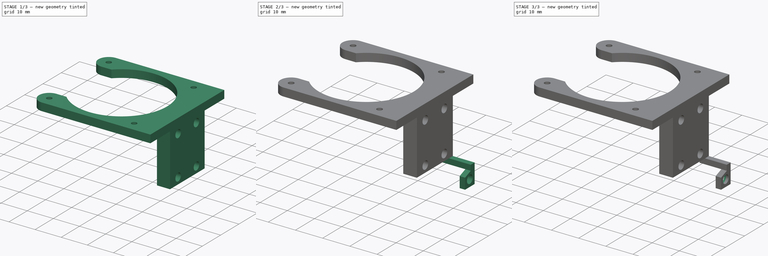
[diagram: build sequence overview — one tinted view per stage of 3, left to right]
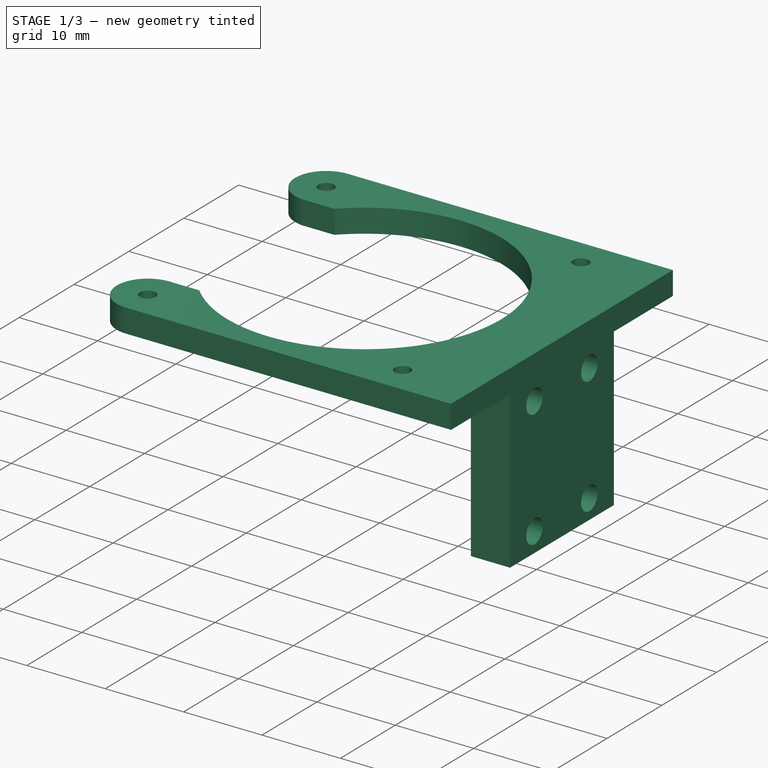
[diagram: stage 1 of 3 — iso view after this stage's code; geometry added in this stage tinted green]
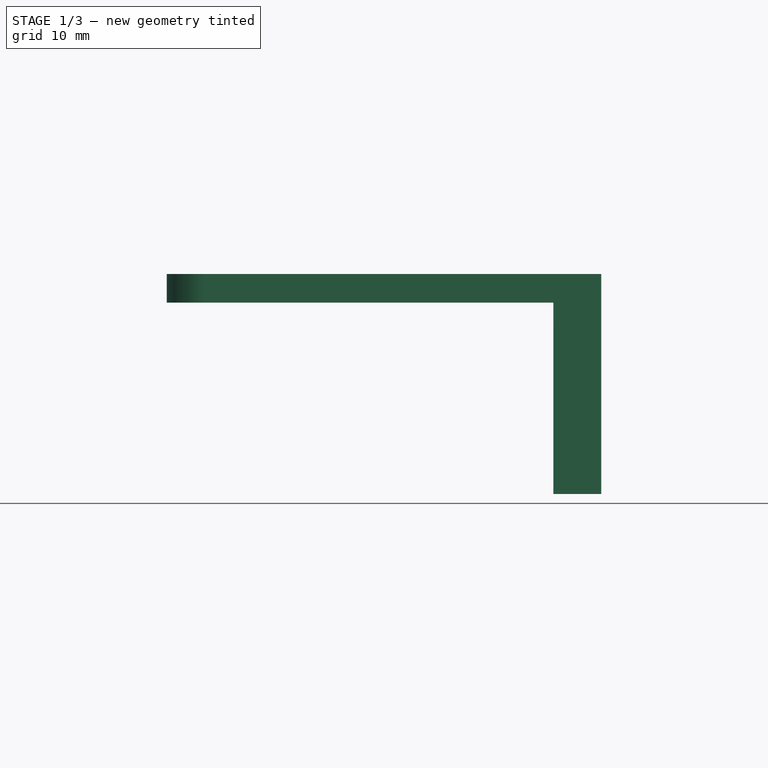
[diagram: stage 1 of 3 — front view after this stage's code; geometry added in this stage tinted green]
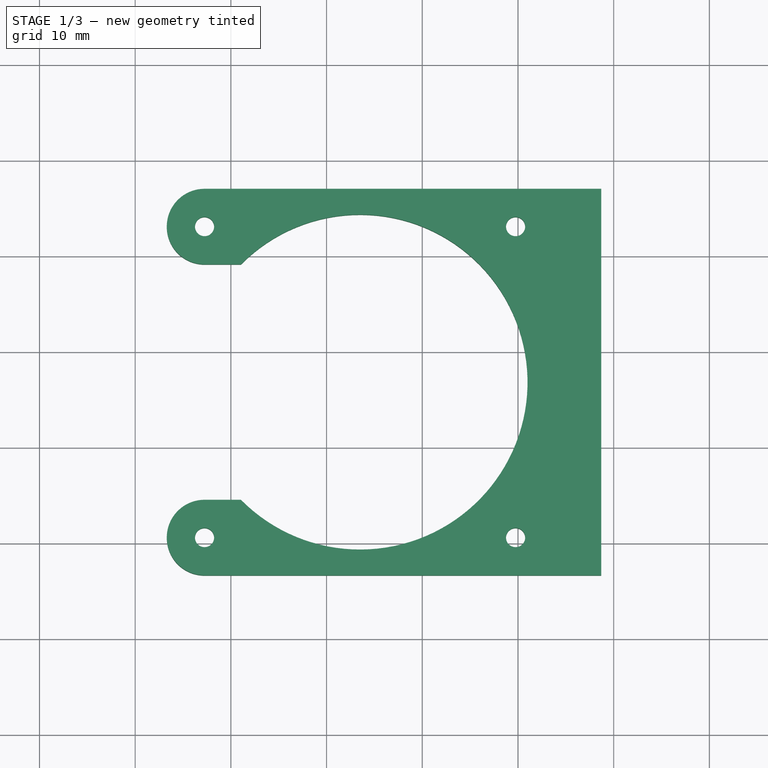
[diagram: stage 1 of 3 — top view after this stage's code; geometry added in this stage tinted green]
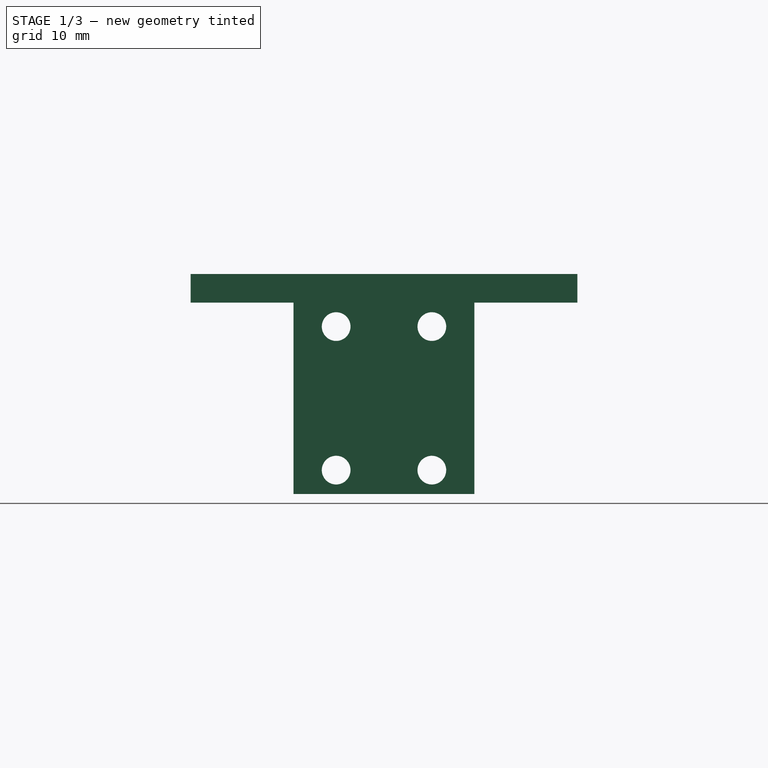
[diagram: stage 1 of 3 — right view after this stage's code; geometry added in this stage tinted green]
FCSTD DOCUMENT  (FreeCAD 0.21R33668 +26 (Git))
Label: Joystick_Holder
License: All rights reserved
LicenseURL: http://en.wikipedia.org/wiki/All_rights_reserved
objects: Sketcher::SketchObject×6, PartDesign::Pad×4, PartDesign::SubShapeBinder×2, PartDesign::Pocket×2, PartDesign::Body×1
note: 21 computed .brp shape members not serialized (recipe doc carries the construction recipe); baked Part::Feature solids carry a one-line shape summary decoded from their .brp
EXTERNAL_REF file=MG/mgn9c_slide.FCStd obj=Body001
EXTERNAL_REF file=R202.FCStd obj=Revolution
EXTERNAL_REF file=MG/Datasheet.FCStd obj=Spreadsheet
EXTERNAL_REF file=NormalConnectorMagnet.FCStd obj=Sketch002
EXTERNAL_REF file=NormalConnectorMagnet.FCStd obj=Pad002
EXTERNAL_REF file=NormalConnectorMagnet.FCStd obj=Sketch003

FEATURE [PartDesign::SubShapeBinder] Binder  label="Slide"
  BindCopyOnChange = 0
  BindMode = 0
  ClaimChildren = false
  Context = -> Body [Binder.]
  Fuse = false
  MakeFace = true
  OffsetFill = false
  OffsetIntersection = false
  OffsetJoinType = 0
  OffsetOpenResult = false
  PartialLoad = false
  Placement = pos=(0,0,0) rot=(0,0,1;1.5708rad)
  Relative = true
  Support = -> [<external MG/mgn9c_slide.FCStd>#Body001]
  _Version = 2
FEATURE [PartDesign::SubShapeBinder] Binder001  label="Joystick"
  BindCopyOnChange = 0
  BindMode = 0
  ClaimChildren = false
  Context = -> Body [Binder001.]
  Fuse = false
  MakeFace = true
  OffsetFill = false
  OffsetIntersection = false
  OffsetJoinType = 0
  OffsetOpenResult = false
  PartialLoad = false
  Placement = pos=(-16.5,16.5,-29.5) rot=(0,0,-1;1.5708rad)
  Relative = true
  Support = -> [<external R202.FCStd>#Revolution]
  _Version = 2
FEATURE [Sketcher::SketchObject] Sketch
  ExternalGeometry = -> [Binder001]
  FullyConstrained = true
  MapMode = 5
  Placement = pos=(-16.5,16.5,0) rot=(0,0,-1;1.5708rad)
  Support = -> [Binder001]
  sketch-geometry (17):
    g0: LineSegment StartX=-20.2 StartY=25.2 StartZ=0 EndX=20.2 EndY=25.2 EndZ=0
    g1: LineSegment StartX=20.2 StartY=25.2 StartZ=0 EndX=20.2 EndY=20.2 EndZ=0
    g2: LineSegment StartX=20.2 StartY=20.2 StartZ=0 EndX=-20.2 EndY=20.2 EndZ=0
    g3: LineSegment StartX=-20.2 StartY=20.2 StartZ=0 EndX=-20.2 EndY=25.2 EndZ=0
    g4: LineSegment StartX=-20.2 StartY=20.2 StartZ=0 EndX=-20.2 EndY=-16.25 EndZ=0
    g5: LineSegment StartX=-12.3 StartY=-16.25 StartZ=0 EndX=-12.3 EndY=-12.4483 EndZ=0
    g6: ArcOfCircle CenterX=-16.25 CenterY=-16.25 CenterZ=0 NormalX=0 NormalY=0 NormalZ=1 AngleXU=0 Radius=3.95 StartAngle=3.14159 EndAngle=6.28319
    g7: ArcOfCircle CenterX=0 CenterY=-1.78e-14 CenterZ=0 NormalX=0 NormalY=0 NormalZ=1 AngleXU=0 Radius=17.5 StartAngle=5.4918 EndAngle=10.2162
    g8: LineSegment StartX=12.3 StartY=-12.4483 StartZ=0 EndX=12.3 EndY=-16.25 EndZ=0
    g9: ArcOfCircle CenterX=16.25 CenterY=-16.25 CenterZ=0 NormalX=0 NormalY=0 NormalZ=1 AngleXU=0 Radius=3.95 StartAngle=3.14159 EndAngle=6.28319
    g10: LineSegment StartX=20.2 StartY=20.2 StartZ=0 EndX=20.2 EndY=-16.25 EndZ=0
    g11: Circle CenterX=-16.25 CenterY=16.25 CenterZ=0 NormalX=0 NormalY=0 NormalZ=1 AngleXU=0 Radius=1
    g12: Circle CenterX=16.25 CenterY=16.25 CenterZ=0 NormalX=0 NormalY=0 NormalZ=1 AngleXU=0 Radius=1
    g13: Circle CenterX=16.25 CenterY=-16.25 CenterZ=0 NormalX=0 NormalY=0 NormalZ=1 AngleXU=0 Radius=1
    g14: Circle CenterX=-16.25 CenterY=-16.25 CenterZ=0 NormalX=0 NormalY=0 NormalZ=1 AngleXU=0 Radius=1
    g15: GeomPoint X=-16.25 Y=-17.25 Z=0
    g16: GeomPoint X=16.25 Y=-15.25 Z=0
  constraints (39):
    c: Coincident(g0,g1)
    c: Coincident(g1,g2)
    c: Coincident(g2,g3)
    c: Coincident(g3,g0)
    c: Horizontal(g0)
    c: Vertical(g1)
    c: Vertical(g3)
    c: Coincident(g1,g-8)
    c: Coincident(g2,g-8)
    c: DistanceY(g3,g3) = 5  'Strength'
    c: Coincident(g4,g3)
    c: Vertical(g4)
    c: PointOnObject(g5,g-9)
    c: Vertical(g5)
    c: Coincident(g6,g-5)
    c: Coincident(g6,g4)
    c: Horizontal(g4,g6)
    c: Tangent(g6,g5) = -1.5708
    c: Coincident(g7,g-9)
    c: Coincident(g7,g5)
    c: Coincident(g8,g7)
    c: Coincident(g9,g-6)
    c: Tangent(g9,g-7) = 1.5708
    c: Tangent(g9,g8) = -1.5708
    c: Horizontal(g8,g9)
    c: Coincident(g10,g1)
    c: Coincident(g10,g9)
    c: Coincident(g11,g-4)
    c: Tangent(g11,g-4)
    c: Coincident(g12,g-3)
    c: Tangent(g12,g-3)
    c: Coincident(g13,g9)
    c: Coincident(g14,g6)
    c: PointOnObject(g15,g-5)
    c: PointOnObject(g15,g14)
    c: PointOnObject(g16,g-6)
    c: PointOnObject(g16,g13)
    c: Vertical(g15,g6)
    c: Vertical(g16,g9)
FEATURE [PartDesign::Pad] Pad
  Direction = (0,0,1)
  Length = 3
  Length2 = 10
  Placement = pos=(-16.5,16.5,-29.5) rot=(0,0,-1;1.5708rad)
  Profile = -> Sketch
  ReferenceAxis = -> Sketch [N_Axis]
  Type = 0
FEATURE [Sketcher::SketchObject] Sketch001
  ExternalGeometry = -> [Pad]
  FullyConstrained = true
  MapMode = 5
  Placement = pos=(8.7,16.5,-29.5) rot=(0.57735,0.57735,0.57735;2.0944rad)
  Support = -> [Pad]
  expr: .Constraints.Rad = 3
  expr: Constraints[25] = .Constraints.Rad
  expr: Constraints[26] = .Constraints.Rad
  expr: Constraints[27] = .Constraints.Rad
  expr: Constraints[30] = <<Datasheet>>#<<mgn9c>>.Dim_C
  expr: Constraints[31] = <<Datasheet>>#<<mgn9c>>.Dim_B
  expr: Constraints[8] = <<Datasheet>>#<<mgn9c>>.Dim_L1
  expr: Constraints[9] = <<Datasheet>>#<<mgn9c>>.Dim_W
  sketch-geometry (14):
    g0: LineSegment StartX=-9.45 StartY=9.5 StartZ=0 EndX=9.45 EndY=9.5 EndZ=0
    g1: LineSegment StartX=9.45 StartY=9.5 StartZ=0 EndX=9.45 EndY=29.5 EndZ=0
    g2: LineSegment StartX=9.45 StartY=29.5 StartZ=0 EndX=-9.45 EndY=29.5 EndZ=0
    g3: LineSegment StartX=-9.45 StartY=29.5 StartZ=0 EndX=-9.45 EndY=9.5 EndZ=0
    g4: GeomPoint X=1.9e-15 Y=29.5 Z=0
    g5: Circle CenterX=-5 CenterY=27 CenterZ=0 NormalX=0 NormalY=0 NormalZ=1 AngleXU=0 Radius=1.5
    g6: Circle CenterX=5 CenterY=27 CenterZ=0 NormalX=0 NormalY=0 NormalZ=1 AngleXU=0 Radius=1.5
    g7: Circle CenterX=-5 CenterY=12 CenterZ=0 NormalX=0 NormalY=0 NormalZ=1 AngleXU=0 Radius=1.5
    g8: Circle CenterX=5 CenterY=12 CenterZ=0 NormalX=0 NormalY=0 NormalZ=1 AngleXU=0 Radius=1.5
    g9: LineSegment StartX=-5 StartY=12 StartZ=0 EndX=5 EndY=12 EndZ=0
    g10: LineSegment StartX=5 StartY=12 StartZ=0 EndX=5 EndY=27 EndZ=0
    g11: LineSegment StartX=5 StartY=27 StartZ=0 EndX=-5 EndY=27 EndZ=0
    g12: LineSegment StartX=-5 StartY=27 StartZ=0 EndX=-5 EndY=12 EndZ=0
    g13: GeomPoint X=1.8e-15 Y=19.5 Z=0
  constraints (32):
    c: Coincident(g0,g1)
    c: Coincident(g1,g2)
    c: Coincident(g2,g3)
    c: Coincident(g3,g0)
    c: Horizontal(g0)
    c: Horizontal(g2)
    c: Vertical(g1)
    c: Vertical(g3)
    c: DistanceX(g2,g2) = 18.9
    c: DistanceY(g1,g1) = 20
    c: Symmetric(g-3,g-4,g4)
    c: Symmetric(g2,g1,g4)
    c: Coincident(g9,g10)
    c: Coincident(g10,g11)
    c: Coincident(g11,g12)
    c: Coincident(g12,g9)
    c: Horizontal(g9)
    c: Horizontal(g11)
    c: Vertical(g10)
    c: Vertical(g12)
    c: Coincident(g9,g7)
    c: Coincident(g10,g6)
    c: Coincident(g5,g11)
    c: Coincident(g8,g9)
    c: Diameter(g7) = 3  'Rad'
    c: Diameter(g8) = 3
    c: Diameter(g6) = 3
    c: Diameter(g5) = 3
    c: Symmetric(g1,g0,g13)
    c: Symmetric(g7,g6,g13)
    c: DistanceX(g11,g11) = 10
    c: DistanceY(g10,g10) = 15
FEATURE [PartDesign::Pad] Pad001
  BaseFeature = -> Pad
  Direction = (1,4e-16,0)
  Length = 5
  Length2 = 10
  Placement = pos=(-16.5,16.5,-29.5) rot=(0,0,-1;1.5708rad)
  Profile = -> Sketch001
  ReferenceAxis = -> Sketch001 [N_Axis]
  Reversed = true
  Type = 0
  expr: Length = <<Sketch>>.Constraints.Strength
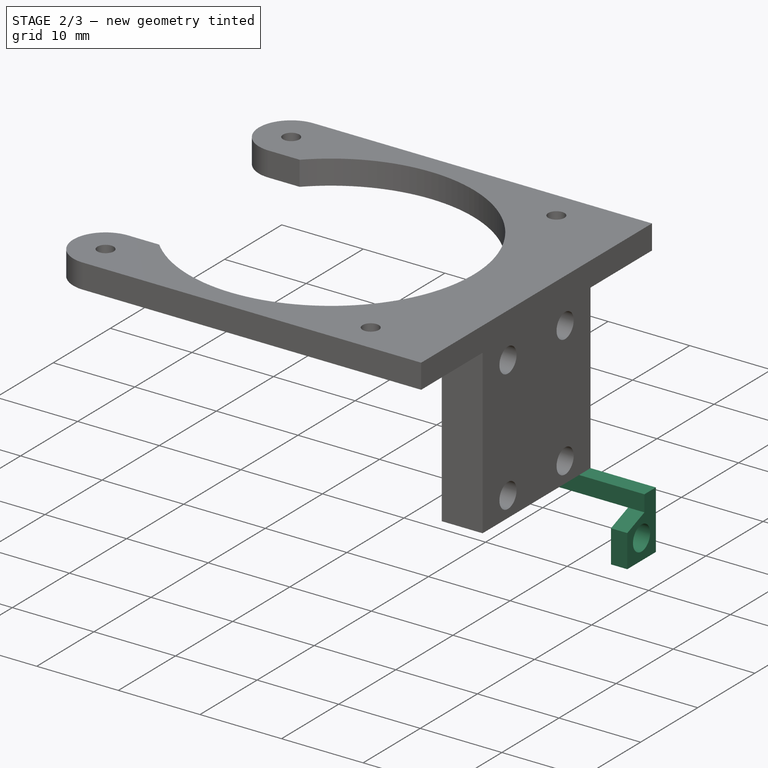
[diagram: stage 2 of 3 — iso view after this stage's code; geometry added in this stage tinted green]
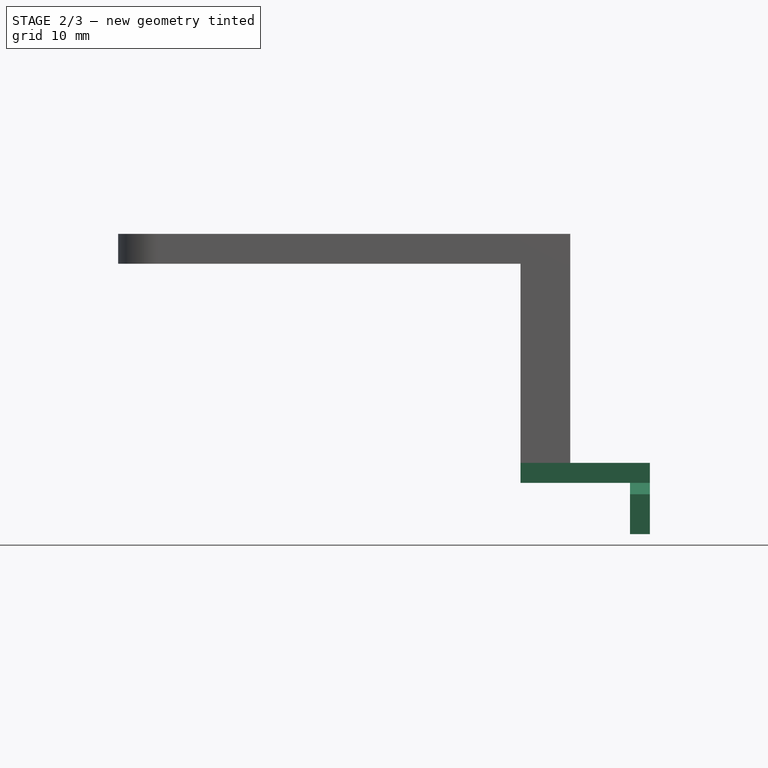
[diagram: stage 2 of 3 — front view after this stage's code; geometry added in this stage tinted green]
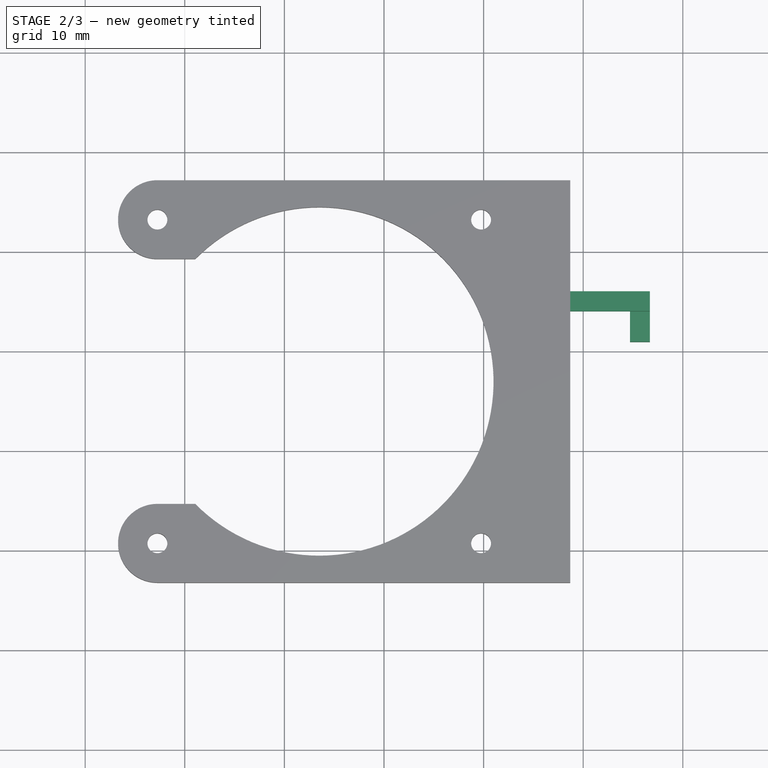
[diagram: stage 2 of 3 — top view after this stage's code; geometry added in this stage tinted green]
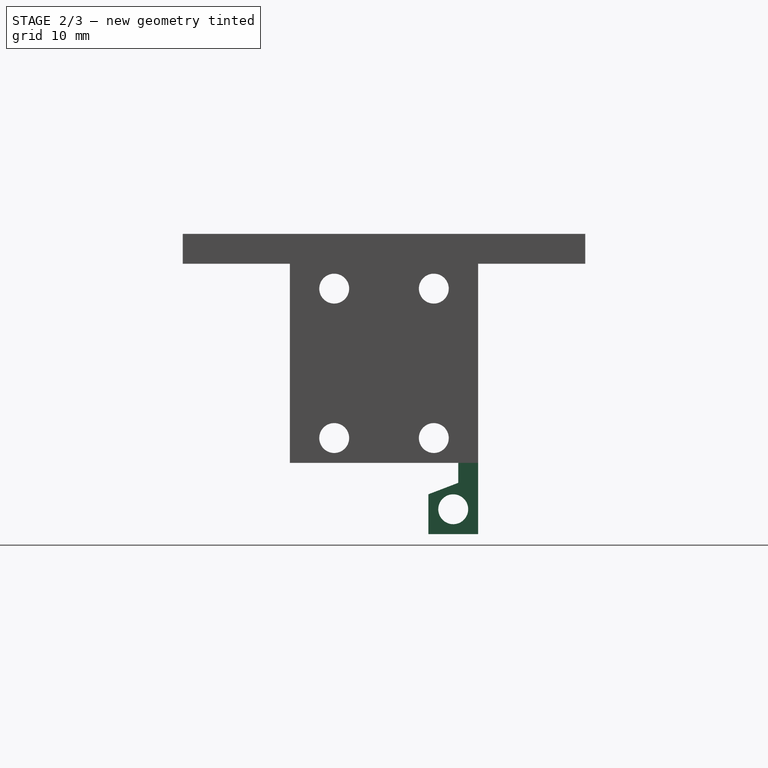
[diagram: stage 2 of 3 — right view after this stage's code; geometry added in this stage tinted green]
FEATURE [Sketcher::SketchObject] Sketch002
  ExternalGeometry = -> [Pad001]
  FullyConstrained = true
  MapMode = 5
  Placement = pos=(3.7,16.5,-29.5) rot=(0.57735,-0.57735,-0.57735;2.0944rad)
  Support = -> [Pad001]
  sketch-geometry (4):
    g0: LineSegment StartX=-9.45 StartY=9.5 StartZ=0 EndX=-7.45 EndY=9.5 EndZ=0
    g1: LineSegment StartX=-7.45 StartY=9.5 StartZ=0 EndX=-7.45 EndY=7.5 EndZ=0
    g2: LineSegment StartX=-7.45 StartY=7.5 StartZ=0 EndX=-9.45 EndY=7.5 EndZ=0
    g3: LineSegment StartX=-9.45 StartY=7.5 StartZ=0 EndX=-9.45 EndY=9.5 EndZ=0
  constraints (11):
    c: Coincident(g0,g1)
    c: Coincident(g1,g2)
    c: Coincident(g2,g3)
    c: Coincident(g3,g0)
    c: Horizontal(g0)
    c: Horizontal(g2)
    c: Vertical(g1)
    c: Vertical(g3)
    c: DistanceX(g2,g2) = 2
    c: Coincident(g0,g-3)
    c: DistanceY(g1,g1) = 2
FEATURE [PartDesign::Pad] Pad002
  BaseFeature = -> Pad001
  Direction = (-1,-4e-16,0)
  Length = 13
  Length2 = 10
  Placement = pos=(-16.5,16.5,-29.5) rot=(0,0,-1;1.5708rad)
  Profile = -> Sketch002
  ReferenceAxis = -> Sketch002 [N_Axis]
  Reversed = true
  Type = 0
  expr: Length = <<Pad001>>.Length + <<Datasheet>>#<<mgn9c>>.Dim_H - <<Datasheet>>#<<mgn9c>>.Dim_H1
FEATURE [Sketcher::SketchObject] Sketch003
  ExternalGeometry = -> [Pad002]
  FullyConstrained = true
  MapMode = 5
  Placement = pos=(16.7,16.5,-29.5) rot=(0.57735,0.57735,0.57735;2.0944rad)
  Support = -> [Pad002]
  expr: Constraints[17] = <<NormalConnectorMagnet>>#<<Sketch002>>.Constraints.SlideToMagnetCenter
  sketch-geometry (13):
    g0: LineSegment StartX=9.45 StartY=9.5 StartZ=0 EndX=4.45 EndY=9.5 EndZ=0
    g1: LineSegment StartX=4.45 StartY=9.5 StartZ=0 EndX=4.45 EndY=2.35 EndZ=0
    g2: LineSegment StartX=4.45 StartY=2.35 StartZ=0 EndX=9.45 EndY=2.35 EndZ=0
    g3: LineSegment StartX=9.45 StartY=2.35 StartZ=0 EndX=9.45 EndY=9.5 EndZ=0
    g4: Circle CenterX=6.95 CenterY=4.85 CenterZ=0 NormalX=0 NormalY=0 NormalZ=1 AngleXU=0 Radius=1.5
    g5: GeomPoint X=8.45 Y=4.85 Z=0
    g6: GeomPoint X=6.95 Y=3.35 Z=0
    g7: LineSegment StartX=6.95 StartY=3.35 StartZ=0 EndX=6.95 EndY=2.35 EndZ=0
    g8: LineSegment StartX=7.45 StartY=7.5 StartZ=0 EndX=4.45 EndY=6.35 EndZ=0
    g9: LineSegment StartX=4.45 StartY=6.35 StartZ=0 EndX=4.45 EndY=2.35 EndZ=0
    g10: GeomPoint X=6.95 Y=6.35 Z=0
    g11: LineSegment StartX=7.45 StartY=9.5 StartZ=0 EndX=9.45 EndY=9.5 EndZ=0
    g12: LineSegment StartX=7.45 StartY=7.5 StartZ=0 EndX=7.45 EndY=9.5 EndZ=0
  constraints (32):
    c: Coincident(g0,g1)
    c: Coincident(g1,g2)
    c: Coincident(g2,g3)
    c: Coincident(g3,g0)
    c: Horizontal(g0)
    c: Horizontal(g2)
    c: Vertical(g1)
    c: Vertical(g3)
    c: PointOnObject(g-3,g3)
    c: PointOnObject(g-4,g0)
    c: Diameter(g4) = 3
    c: PointOnObject(g5,g4)
    c: DistanceX(g5,g0) = 1
    c: PointOnObject(g6,g4)
    c: DistanceY(g2,g6) = 1
    c: Horizontal(g5,g4)
    c: Vertical(g4,g6)
    c: DistanceY(g4,g0) = 4.65
    c: Coincident(g7,g6)
    c: Vertical(g7)
    c: Symmetric(g1,g2,g7)
    c: Coincident(g8,g-4)
    c: PointOnObject(g8,g1)
    c: Coincident(g9,g8)
    c: Coincident(g9,g2)
    c: PointOnObject(g10,g4)
    c: Vertical(g10,g4)
    c: Horizontal(g8,g10)
    c: Coincident(g12,g11)
    c: Coincident(g11,g-4)
    c: Coincident(g0,g11)
    c: Coincident(g8,g12)
FEATURE [PartDesign::Pad] Pad003
  BaseFeature = -> Pad002
  Direction = (1,4e-16,0)
  Length = 2
  Length2 = 10
  Placement = pos=(-16.5,16.5,-29.5) rot=(0,0,-1;1.5708rad)
  Profile = -> Sketch003
  ReferenceAxis = -> Sketch003 [N_Axis]
  Reversed = true
  Type = 0
  expr: Length = <<NormalConnectorMagnet>>#<<Pad002>>.Length
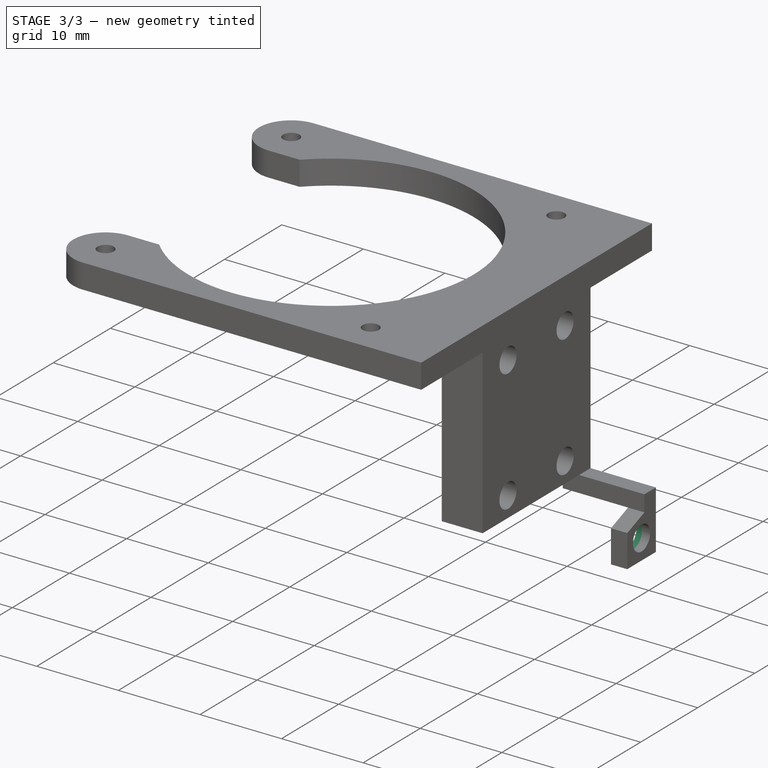
[diagram: stage 3 of 3 — iso view after this stage's code; geometry added in this stage tinted green]
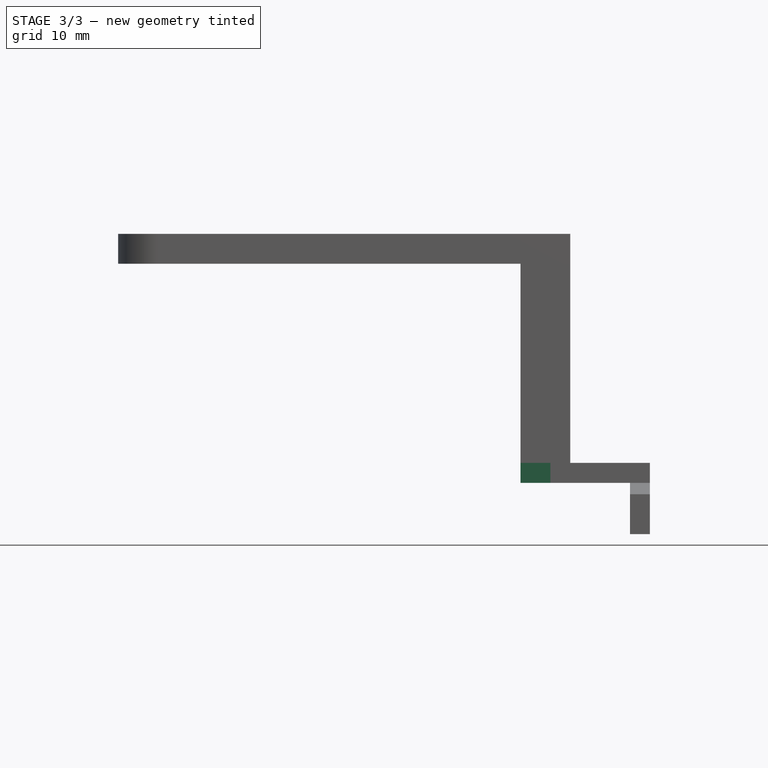
[diagram: stage 3 of 3 — front view after this stage's code; geometry added in this stage tinted green]
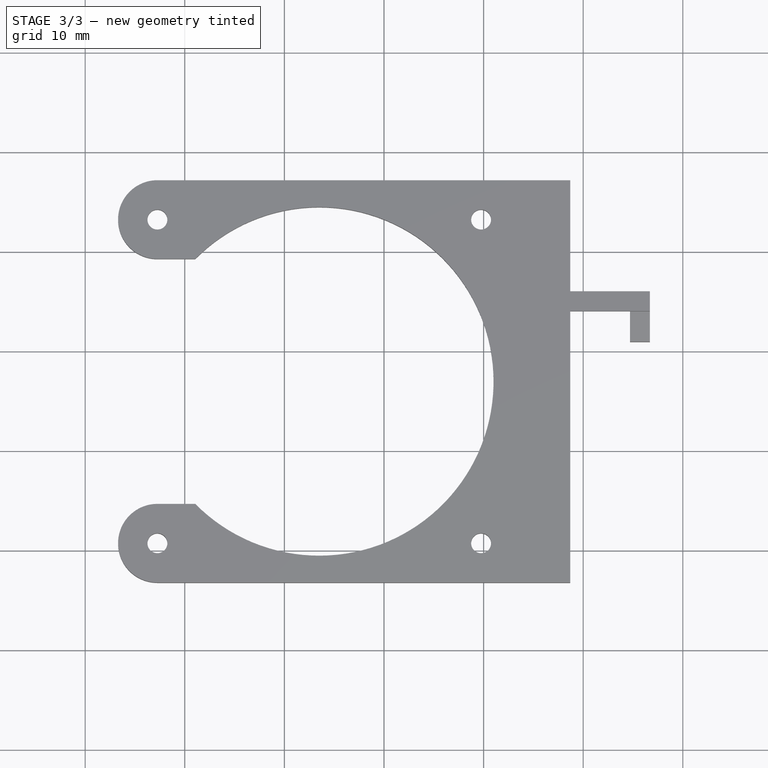
[diagram: stage 3 of 3 — top view after this stage's code; geometry added in this stage tinted green]
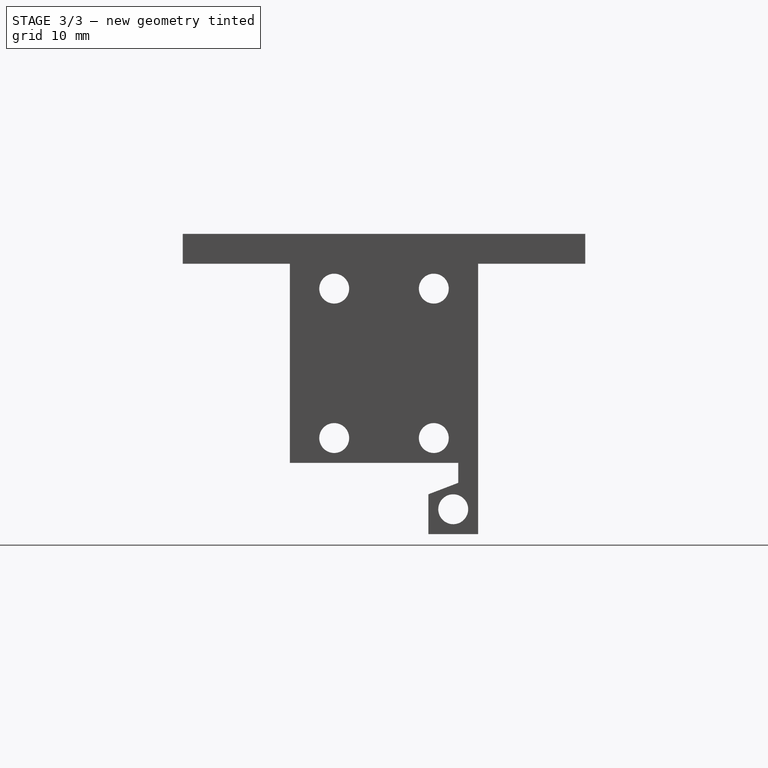
[diagram: stage 3 of 3 — right view after this stage's code; geometry added in this stage tinted green]
FEATURE [Sketcher::SketchObject] Sketch004
  ExternalGeometry = -> [Pad003]
  FullyConstrained = true
  MapMode = 5
  Placement = pos=(14.7,16.5,-29.5) rot=(0.57735,-0.57735,-0.57735;2.0944rad)
  Support = -> [Pad003]
  expr: Constraints[1] = <<NormalConnectorMagnet>>#<<Sketch003>>.Constraints.MagnetDiameter
  sketch-geometry (1):
    g0: Circle CenterX=-6.95 CenterY=4.85 CenterZ=0 NormalX=0 NormalY=0 NormalZ=1 AngleXU=0 Radius=2
  constraints (2):
    c: Coincident(g0,g-3)
    c: Diameter(g0) = 4
FEATURE [PartDesign::Pocket] Pocket
  BaseFeature = -> Pad003
  Direction = (1,0,0)
  Length = 1
  Length2 = 5
  Placement = pos=(-16.5,16.5,-29.5) rot=(0,0,-1;1.5708rad)
  Profile = -> Sketch004
  ReferenceAxis = -> Sketch004 [N_Axis]
  Type = 0
FEATURE [Sketcher::SketchObject] Sketch005
  ExternalGeometry = -> [Pocket]
  FullyConstrained = true
  MapMode = 5
  Placement = pos=(3.7,16.5,-29.5) rot=(0.57735,-0.57735,-0.57735;2.0944rad)
  Support = -> [Pocket]
  expr: Constraints[1] = <<Datasheet>>#<<mgn9c>>.Dim_D
  expr: Constraints[5] = <<Datasheet>>#<<mgn9c>>.Dim_D
  expr: Constraints[6] = <<Datasheet>>#<<mgn9c>>.Dim_D
  expr: Constraints[7] = <<Datasheet>>#<<mgn9c>>.Dim_D
  sketch-geometry (14):
    g0: Circle CenterX=-5 CenterY=27 CenterZ=0 NormalX=0 NormalY=0 NormalZ=1 AngleXU=0 Radius=3
    g1: Circle CenterX=5 CenterY=27 CenterZ=0 NormalX=0 NormalY=0 NormalZ=1 AngleXU=0 Radius=3
    g2: Circle CenterX=5 CenterY=12 CenterZ=0 NormalX=0 NormalY=0 NormalZ=1 AngleXU=0 Radius=3
    g3: Circle CenterX=-5 CenterY=12 CenterZ=0 NormalX=0 NormalY=0 NormalZ=1 AngleXU=0 Radius=3
    g4: ArcOfCircle CenterX=-5 CenterY=12 CenterZ=0 NormalX=0 NormalY=0 NormalZ=1 AngleXU=0 Radius=3 StartAngle=2.26252e-07 EndAngle=3.14159
    g5: ArcOfCircle CenterX=5 CenterY=12 CenterZ=0 NormalX=0 NormalY=0 NormalZ=1 AngleXU=0 Radius=3 StartAngle=6.28318 EndAngle=9.42479
    g6: LineSegment StartX=2 StartY=9.5 StartZ=0 EndX=8 EndY=9.5 EndZ=0
    g7: LineSegment StartX=8 StartY=9.5 StartZ=0 EndX=8 EndY=12 EndZ=0
    g8: LineSegment StartX=8 StartY=12 StartZ=0 EndX=2 EndY=12 EndZ=0
    g9: LineSegment StartX=2 StartY=12 StartZ=0 EndX=2 EndY=9.5 EndZ=0
    g10: LineSegment StartX=-2 StartY=7.5 StartZ=0 EndX=-8 EndY=7.5 EndZ=0
    g11: LineSegment StartX=-8 StartY=7.5 StartZ=0 EndX=-8 EndY=12 EndZ=0
    g12: LineSegment StartX=-8 StartY=12 StartZ=0 EndX=-2 EndY=12 EndZ=0
    g13: LineSegment StartX=-2 StartY=12 StartZ=0 EndX=-2 EndY=7.5 EndZ=0
  constraints (36):
    c: Coincident(g0,g-3)
    c: Diameter(g0) = 6
    c: Coincident(g1,g-4)
    c: Coincident(g2,g-5)
    c: Coincident(g3,g-6)
    c: Diameter(g1) = 6
    c: Diameter(g2) = 6
    c: Diameter(g3) = 6
    c: Coincident(g4,g3)
    c: PointOnObject(g4,g3)
    c: Coincident(g5,g2)
    c: PointOnObject(g5,g2)
    c: Coincident(g6,g7)
    c: Coincident(g7,g8)
    c: Coincident(g8,g9)
    c: Coincident(g9,g6)
    c: Horizontal(g6)
    c: Horizontal(g8)
    c: Vertical(g7)
    c: Vertical(g9)
    c: Coincident(g7,g5)
    c: PointOnObject(g6,g-7)
    c: Coincident(g5,g8)
    c: Coincident(g10,g11)
    c: Coincident(g11,g12)
    c: Coincident(g12,g13)
    c: Coincident(g13,g10)
    c: Horizontal(g10)
    c: Horizontal(g12)
    c: Vertical(g11)
    c: Vertical(g13)
    c: Coincident(g11,g4)
    c: Coincident(g4,g12)
    c: Tangent(g13,g4)
    c: Tangent(g9,g5)
    c: PointOnObject(g-8,g10)
FEATURE [PartDesign::Pocket] Pocket001
  BaseFeature = -> Pocket
  Direction = (1,9e-16,0)
  Length = 3
  Length2 = 5
  Placement = pos=(-16.5,16.5,-29.5) rot=(0,0,-1;1.5708rad)
  Profile = -> Sketch005
  ReferenceAxis = -> Sketch005 [N_Axis]
  Type = 4
  expr: Length = <<Pad001>>.Length - 2 mm
FEATURE [PartDesign::Body] Body  label="JoystickHolder"
  Group = -> [Binder,Binder001,Sketch,Pad,Sketch001,Pad001,Sketch002,Pad002,Sketch003,Pad003,Sketch004,Pocket,Sketch005,Pocket001]
  Origin = -> Origin
  Placement = pos=(0,0,-4) rot=(0,0,1;0rad)
  Tip = -> Pocket001
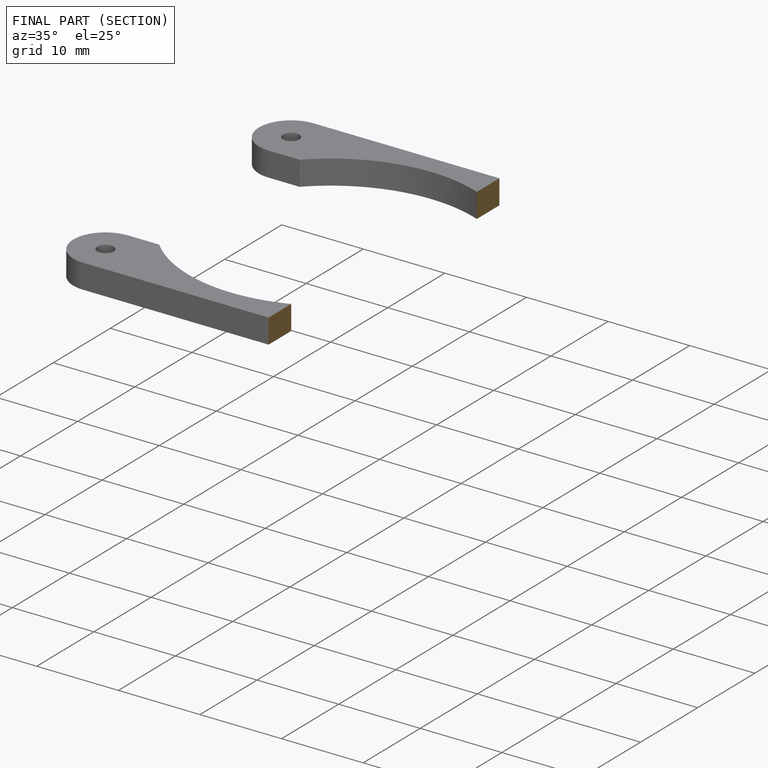
[diagram: finished part — half-section view (interior)]
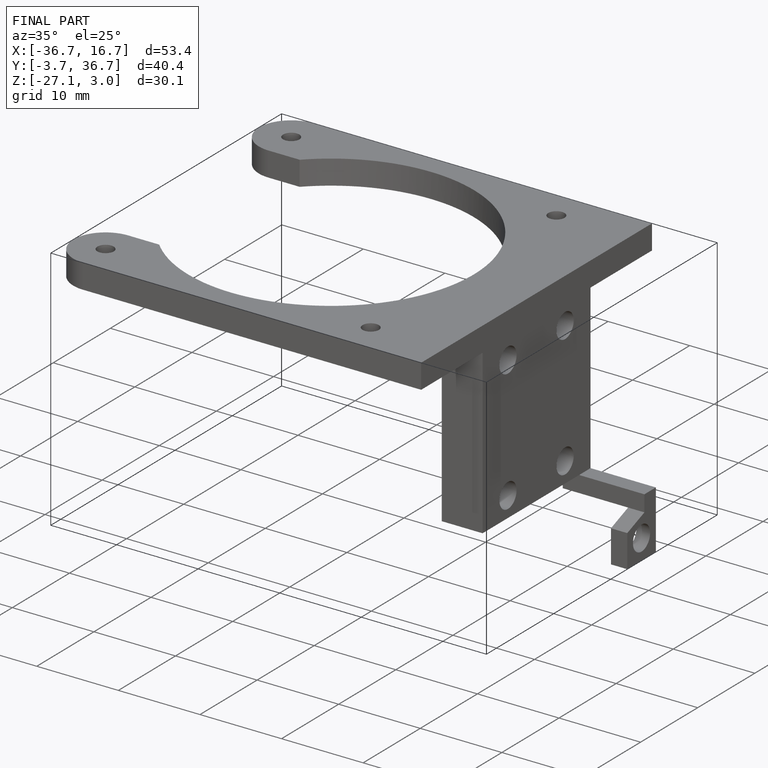
[diagram: finished part — iso view with bounding-box wireframe]
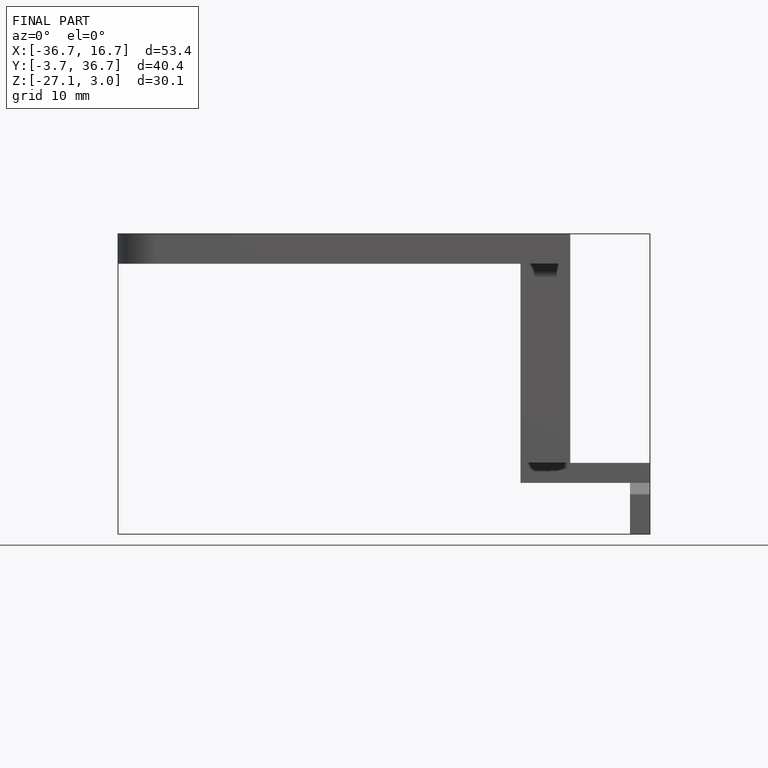
[diagram: finished part — front view with bounding-box wireframe]
